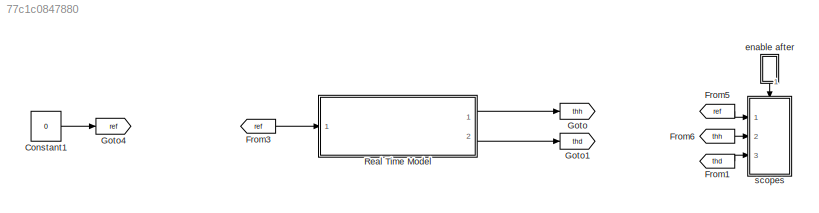
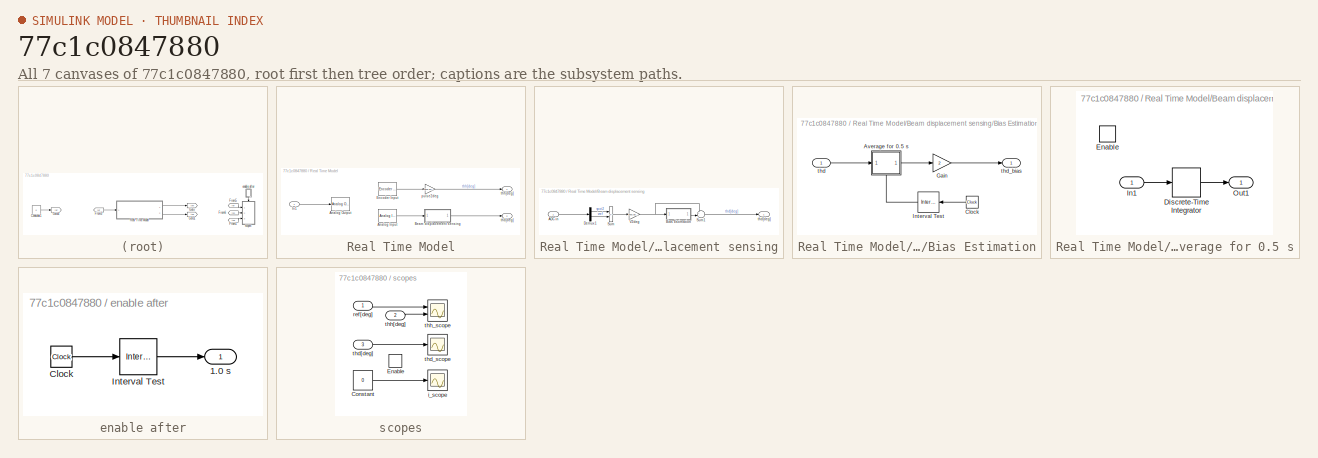
[diagram: thumbnail index - all 7 canvases of the model, root first then tree order]
MODEL slx_77c1c0847880
KIND model
CONFIG AbsTol = auto
CONFIG EnableMultiTasking = off
CONFIG FixedStep = 0.001
CONFIG MaxStep = auto
CONFIG MinStep = auto
CONFIG RelTol = 1e-3
CONFIG SampleTimeConstraint = Unconstrained
CONFIG SolverName = ode3
CONFIG StartTime = 0.0
CONFIG StopTime = 10.0
BLOCK [Constant] Constant1
  Value = 0
BLOCK [From] From1
  GotoTag = thd
BLOCK [From] From3
  GotoTag = ref
BLOCK [From] From5
  GotoTag = ref
BLOCK [From] From6
  GotoTag = thh
BLOCK [Goto] Goto
  GotoTag = thh
BLOCK [Goto] Goto1
  GotoTag = thd
BLOCK [Goto] Goto4
  GotoTag = ref
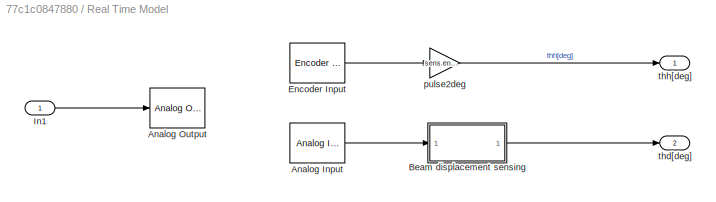
BLOCK [SubSystem] Real Time Model
  Ports = [1, 2]
  RequestExecContextInheritance = off
BLOCK [Reference] Real Time Model/Analog Input  REF=sldrtlib/Analog Input
  AttributesFormatString = National Instruments\nPCIe-6321 [auto]
  Ports = [0, 1]
  SourceBlock = sldrtlib/Analog Input
  SourceProductBaseCode = WT
  SourceType = Simulink Desktop Real-Time Analog Input
BLOCK [Reference] Real Time Model/Analog Output  REF=sldrtlib/Analog Output
  AttributesFormatString = National Instruments\nPCIe-6321 [auto]
  Ports = [1]
  SourceBlock = sldrtlib/Analog Output
  SourceProductBaseCode = WT
  SourceType = Simulink Desktop Real-Time Analog Output
BLOCK [SubSystem] Real Time Model/Beam displacement sensing
  Ports = [1, 1]
  RequestExecContextInheritance = off
BLOCK [Inport] Real Time Model/Beam displacement sensing/ADC in
BLOCK [SubSystem] Real Time Model/Beam displacement sensing/Bias Estimation
  Ports = [1, 1]
  RequestExecContextInheritance = off
BLOCK [SubSystem] Real Time Model/Beam displacement sensing/Bias Estimation/Average for 0.5 s
  NameLocation = top
  Ports = [1, 1, 1]
  RequestExecContextInheritance = off
BLOCK [DiscreteIntegrator] Real Time Model/Beam displacement sensing/Bias Estimation/Average for 0.5 s/Discrete-Time Integrator
  ICPrevOutput = DiscIntNeverNeededParam
  ICPrevScaledInput = DiscIntNeverNeededParam
  InitialConditionSetting = Auto
  Ports = [1, 1]
  SampleTime = Ts
BLOCK [EnablePort] Real Time Model/Beam displacement sensing/Bias Estimation/Average for 0.5 s/Enable
  Ports = []
BLOCK [Inport] Real Time Model/Beam displacement sensing/Bias Estimation/Average for 0.5 s/In1
BLOCK [Outport] Real Time Model/Beam displacement sensing/Bias Estimation/Average for 0.5 s/Out1
BLOCK [Clock] Real Time Model/Beam displacement sensing/Bias Estimation/Clock
  NameLocation = top
BLOCK [Gain] Real Time Model/Beam displacement sensing/Bias Estimation/Gain
  Gain = 2
BLOCK [Reference] Real Time Model/Beam displacement sensing/Bias Estimation/Interval Test  REF=simulink/Logic and Bit
Operations/Interval Test
  NameLocation = top
  Ports = [1, 1]
  SourceBlock = simulink/Logic and Bit\nOperations/Interval Test
  SourceProductBaseCode = SL
  SourceType = Interval Test
BLOCK [Inport] Real Time Model/Beam displacement sensing/Bias Estimation/thd
BLOCK [Outport] Real Time Model/Beam displacement sensing/Bias Estimation/thd_bias
BLOCK [Demux] Real Time Model/Beam displacement sensing/Demux1
  Outputs = 2
  Ports = [1, 2]
BLOCK [Sum] Real Time Model/Beam displacement sensing/Sum
  IconShape = rectangular
  Inputs = +-
  Ports = [2, 1]
BLOCK [Sum] Real Time Model/Beam displacement sensing/Sum1
  Inputs = +-|
  Ports = [2, 1]
BLOCK [Gain] Real Time Model/Beam displacement sensing/V2deg
  Gain = sens.pot2.V2deg
BLOCK [Outport] Real Time Model/Beam displacement sensing/thd[deg]
BLOCK [Reference] Real Time Model/Encoder Input  REF=sldrtlib/Encoder Input
  AttributesFormatString = National Instruments\nPCIe-6321 [auto]
  Ports = [0, 1]
  SourceBlock = sldrtlib/Encoder Input
  SourceProductBaseCode = WT
  SourceType = Simulink Desktop Real-Time Encoder Input
BLOCK [Inport] Real Time Model/In1
BLOCK [Gain] Real Time Model/pulse2deg
  Gain = sens.enc.pulse2deg
  NameLocation = top
BLOCK [Outport] Real Time Model/thd[deg]
  Port = 2
BLOCK [Outport] Real Time Model/thh[deg]
BLOCK [SubSystem] enable after
  NameLocation = left
  Ports = [0, 1]
  RequestExecContextInheritance = off
BLOCK [Outport] enable after/1.0 s
BLOCK [Clock] enable after/Clock
BLOCK [Reference] enable after/Interval Test  REF=simulink/Logic and Bit
Operations/Interval Test
  Ports = [1, 1]
  SourceBlock = simulink/Logic and Bit\nOperations/Interval Test
  SourceProductBaseCode = SL
  SourceType = Interval Test
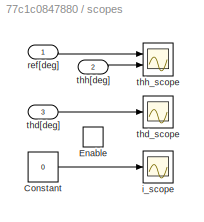
BLOCK [SubSystem] scopes
  Ports = [3, 0, 1]
  RequestExecContextInheritance = off
BLOCK [Constant] scopes/Constant
  Value = 0
BLOCK [EnablePort] scopes/Enable
  Ports = []
BLOCK [Scope] scopes/i_scope
  Floating = off
  NumInputPorts = 1
  Ports = [1]
  ScopeSpecificationString = Simulink.scopes.TimeScopeBlockCfg('CurrentConfiguration', extmgr.ConfigurationSet(extmgr.Configuration('Core','General UI',true),extmgr.Configuration('Core','Source UI',true),extmgr.Configuration('Sources','WiredSimulink',true,'DataLoggingVariableName','i_scope','DataLogging',true,'DataLoggingSaveFormat','StructureWithTime'),extmgr.Configuration('Visuals','Time Domain',true,'SerializedDisplays',{s...<+1423ch>
BLOCK [Inport] scopes/ref[deg]
BLOCK [Inport] scopes/thd[deg]
  Port = 3
BLOCK [Scope] scopes/thd_scope
  Floating = off
  NumInputPorts = 1
  Ports = [1]
  ScopeSpecificationString = Simulink.scopes.TimeScopeBlockCfg('CurrentConfiguration', extmgr.ConfigurationSet(extmgr.Configuration('Core','General UI',true),extmgr.Configuration('Core','Source UI',true),extmgr.Configuration('Sources','WiredSimulink',true,'DataLoggingVariableName','thd_scope','DataLogging',true,'DataLoggingSaveFormat','StructureWithTime'),extmgr.Configuration('Visuals','Time Domain',true,'SerializedDisplays',...<+1435ch>
BLOCK [Inport] scopes/thh[deg]
  Port = 2
BLOCK [Scope] scopes/thh_scope
  Floating = off
  NumInputPorts = 2
  Ports = [2]
  ScopeSpecificationString = Simulink.scopes.TimeScopeBlockCfg('CurrentConfiguration', extmgr.ConfigurationSet(extmgr.Configuration('Core','General UI',true),extmgr.Configuration('Core','Source UI',true),extmgr.Configuration('Sources','WiredSimulink',true,'DataLoggingVariableName','thh_scope','DataLogging',true,'DataLoggingSaveFormat','StructureWithTime'),extmgr.Configuration('Visuals','Time Domain',true,'SerializedDisplays',...<+1444ch>
LINE Constant1:1 -> Goto4:1
LINE From1:1 -> scopes:3
LINE From3:1 -> Real Time Model:1
LINE From5:1 -> scopes:1
LINE From6:1 -> scopes:2
LINE Real Time Model/Analog Input:1 -> Real Time Model/Beam displacement sensing:1
LINE Real Time Model/Beam displacement sensing/ADC in:1 -> Real Time Model/Beam displacement sensing/Demux1:1
LINE Real Time Model/Beam displacement sensing/Bias Estimation/Average for 0.5 s/Discrete-Time Integrator:1 -> Real Time Model/Beam displacement sensing/Bias Estimation/Average for 0.5 s/Out1:1
LINE Real Time Model/Beam displacement sensing/Bias Estimation/Average for 0.5 s/In1:1 -> Real Time Model/Beam displacement sensing/Bias Estimation/Average for 0.5 s/Discrete-Time Integrator:1
LINE Real Time Model/Beam displacement sensing/Bias Estimation/Average for 0.5 s:1 -> Real Time Model/Beam displacement sensing/Bias Estimation/Gain:1
LINE Real Time Model/Beam displacement sensing/Bias Estimation/Clock:1 -> Real Time Model/Beam displacement sensing/Bias Estimation/Interval Test:1
LINE Real Time Model/Beam displacement sensing/Bias Estimation/Gain:1 -> Real Time Model/Beam displacement sensing/Bias Estimation/thd_bias:1
LINE Real Time Model/Beam displacement sensing/Bias Estimation/Interval Test:1 -> Real Time Model/Beam displacement sensing/Bias Estimation/Average for 0.5 s:enable
LINE Real Time Model/Beam displacement sensing/Bias Estimation/thd:1 -> Real Time Model/Beam displacement sensing/Bias Estimation/Average for 0.5 s:1
LINE Real Time Model/Beam displacement sensing/Bias Estimation:1 -> Real Time Model/Beam displacement sensing/Sum1:2
LINE Real Time Model/Beam displacement sensing/Demux1:1 -> Real Time Model/Beam displacement sensing/Sum:1
LINE Real Time Model/Beam displacement sensing/Demux1:2 -> Real Time Model/Beam displacement sensing/Sum:2
LINE Real Time Model/Beam displacement sensing/Sum1:1 -> Real Time Model/Beam displacement sensing/thd[deg]:1
LINE Real Time Model/Beam displacement sensing/Sum:1 -> Real Time Model/Beam displacement sensing/V2deg:1
NET Real Time Model/Beam displacement sensing/V2deg:1 -> Real Time Model/Beam displacement sensing/Bias Estimation:1, Real Time Model/Beam displacement sensing/Sum1:1
LINE Real Time Model/Beam displacement sensing:1 -> Real Time Model/thd[deg]:1
LINE Real Time Model/Encoder Input:1 -> Real Time Model/pulse2deg:1
LINE Real Time Model/In1:1 -> Real Time Model/Analog Output:1
LINE Real Time Model/pulse2deg:1 -> Real Time Model/thh[deg]:1
LINE Real Time Model:1 -> Goto:1
LINE Real Time Model:2 -> Goto1:1
LINE enable after/Clock:1 -> enable after/Interval Test:1
LINE enable after/Interval Test:1 -> enable after/1.0 s:1
LINE enable after:1 -> scopes:enable
LINE scopes/Constant:1 -> scopes/i_scope:1
LINE scopes/ref[deg]:1 -> scopes/thh_scope:1
LINE scopes/thd[deg]:1 -> scopes/thd_scope:1
LINE scopes/thh[deg]:1 -> scopes/thh_scope:2
note: NET lines group one-source signal fan-out (src -> all destinations, sorted); 1:1 wires keep LINE
